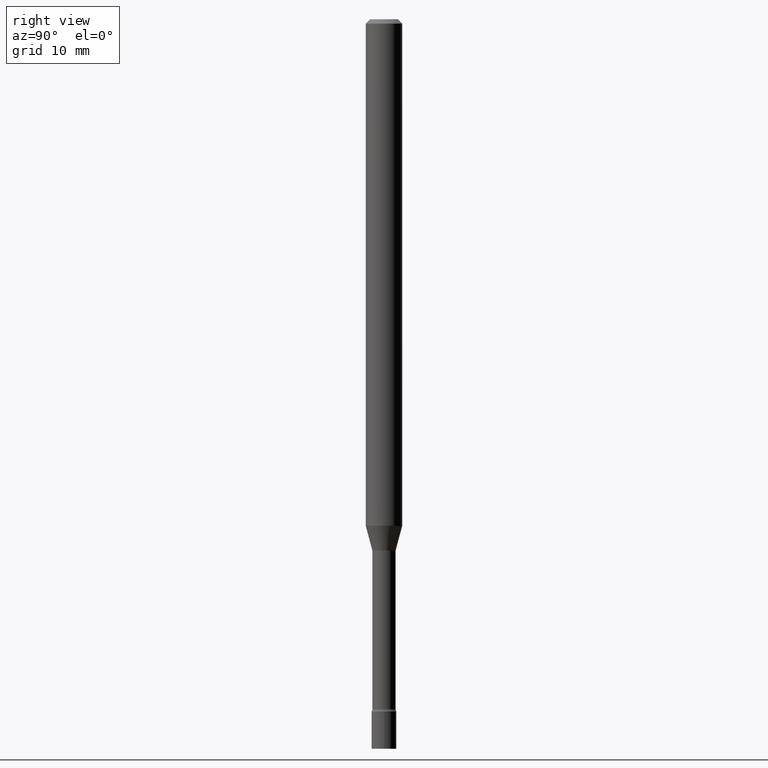
[diagram: clean part render]
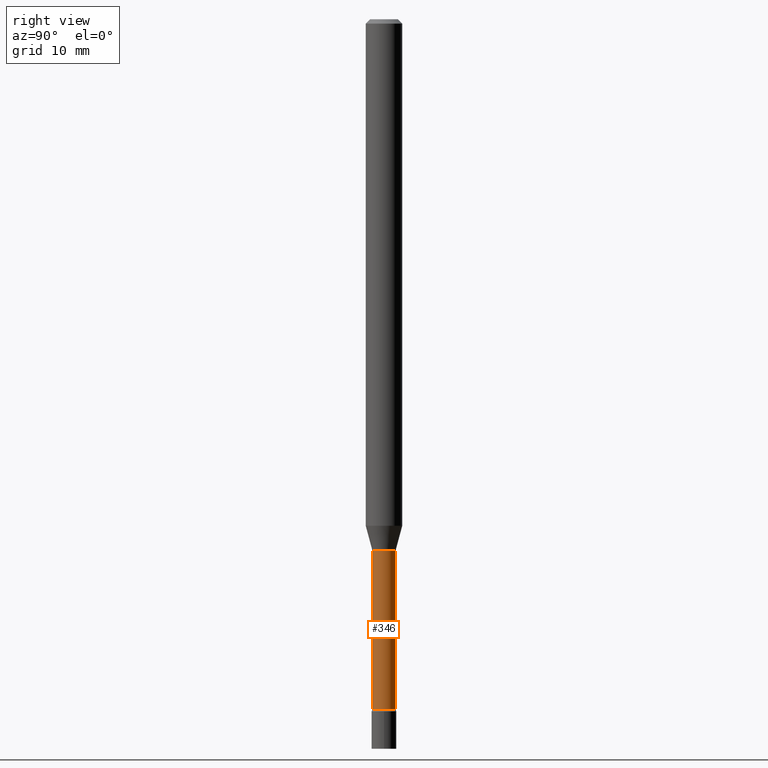
[diagram: same view with one face highlighted and labeled with its STEP entity id]
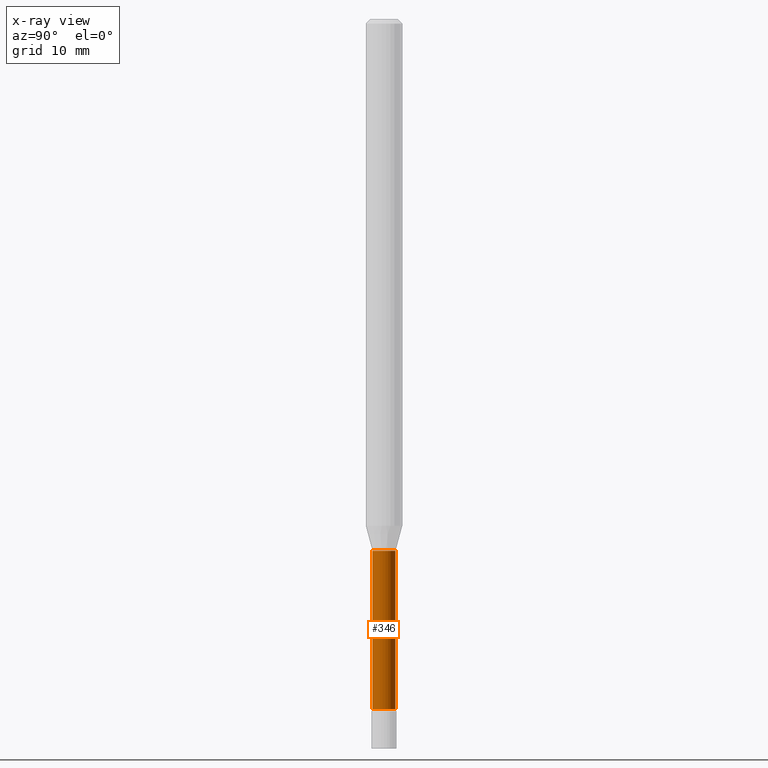
[diagram: x-ray of the same camera — body ghosted, the highlighted face saturated]
A machine part, right view. The second image highlights one B-rep face of the part: STEP entity #346.
The next image is the same camera in x-ray: the body ghosted, the highlighted face saturated — about 0% of this face is hidden behind the body in this view.
In plain terms, the highlighted cylindrical surface (edge-blend (fillet) strip) has radius 1.0147 mm, axis along (-0, 0, 1).
Its self-contained STEP definition (entity closure, byte-faithful):
#11 = DIRECTION ( 'NONE',  ( -2.445529126728560125E-29, 3.491394956391731301E-15, 1.000000000000000000 ) ) ;
#20 = AXIS2_PLACEMENT_3D ( 'NONE', #66, #383, #258 ) ;
#39 = EDGE_CURVE ( 'NONE', #275, #224, #396, .T. ) ;
#66 = CARTESIAN_POINT ( 'NONE',  ( 5.780334689333618772E-29, -8.252378252224179636E-15, -2.363633549139569467 ) ) ;
#69 = DIRECTION ( 'NONE',  ( -2.445529126728560125E-29, 3.491394956391731301E-15, 1.000000000000000000 ) ) ;
#70 = ORIENTED_EDGE ( 'NONE', *, *, #172, .F. ) ;
#113 = VECTOR ( 'NONE', #11, 39.37007874015748143 ) ;
#130 = VERTEX_POINT ( 'NONE', #253 ) ;
#164 = AXIS2_PLACEMENT_3D ( 'NONE', #239, #283, #360 ) ;
#172 = EDGE_CURVE ( 'NONE', #224, #430, #452, .T. ) ;
#182 = ORIENTED_EDGE ( 'NONE', *, *, #432, .T. ) ;
#184 = CYLINDRICAL_SURFACE ( 'NONE', #436, 0.03995000000000004103 ) ;
#218 = CARTESIAN_POINT ( 'NONE',  ( -2.789693589735089879E-16, -0.03995000000000831913, -2.363633549139569023 ) ) ;
#224 = VERTEX_POINT ( 'NONE', #329 ) ;
#226 = CARTESIAN_POINT ( 'NONE',  ( 2.838618229362180999E-16, 0.03994999999999365725, -1.821974787463811474 ) ) ;
#238 = CARTESIAN_POINT ( 'NONE',  ( -2.789693589735665748E-16, -0.03995000000000004103, 1.394812285078498032E-16 ) ) ;
#239 = CARTESIAN_POINT ( 'NONE',  ( 4.455692410907827704E-29, -6.361233583624047089E-15, -1.821974787463811252 ) ) ;
#241 = EDGE_CURVE ( 'NONE', #130, #430, #251, .T. ) ;
#251 = LINE ( 'NONE', #488, #419 ) ;
#253 = CARTESIAN_POINT ( 'NONE',  ( 2.929212428171594149E-16, 0.03994999999999181151, -2.363633549139569912 ) ) ;
#258 = DIRECTION ( 'NONE',  ( -6.982962677686265133E-15, -1.000000000000000000, 6.838167693777868349E-15 ) ) ;
#275 = VERTEX_POINT ( 'NONE', #218 ) ;
#283 = DIRECTION ( 'NONE',  ( -2.445529126728560125E-29, 3.491394956391731301E-15, 1.000000000000000000 ) ) ;
#294 = DIRECTION ( 'NONE',  ( -6.982962677686265133E-15, -1.000000000000000000, 3.491394956391731301E-15 ) ) ;
#329 = CARTESIAN_POINT ( 'NONE',  ( -2.789693589735218069E-16, -0.03995000000000637624, -1.821974787463811030 ) ) ;
#346 = ADVANCED_FACE ( 'NONE', ( #499 ), #184, .T. ) ;
#360 = DIRECTION ( 'NONE',  ( -6.982962677686265922E-15, -1.000000000000000000, 6.838167693777877816E-15 ) ) ;
#369 = CIRCLE ( 'NONE', #20, 0.03995000000000006879 ) ;
#383 = DIRECTION ( 'NONE',  ( -2.445529126728560125E-29, 3.491394956391731301E-15, 1.000000000000000000 ) ) ;
#388 = ORIENTED_EDGE ( 'NONE', *, *, #241, .T. ) ;
#396 = LINE ( 'NONE', #238, #113 ) ;
#419 = VECTOR ( 'NONE', #494, 39.37007874015748143 ) ;
#430 = VERTEX_POINT ( 'NONE', #226 ) ;
#432 = EDGE_CURVE ( 'NONE', #275, #130, #369, .T. ) ;
#436 = AXIS2_PLACEMENT_3D ( 'NONE', #497, #69, #294 ) ;
#452 = CIRCLE ( 'NONE', #164, 0.03995000000000001328 ) ;
#488 = CARTESIAN_POINT ( 'NONE',  ( 2.838618229361602665E-16, 0.03995000000000004103, -1.394812285078498032E-16 ) ) ;
#494 = DIRECTION ( 'NONE',  ( -2.445529126728560125E-29, 3.491394956391731301E-15, 1.000000000000000000 ) ) ;
#497 = CARTESIAN_POINT ( 'NONE',  ( 0.000000000000000000, 0.000000000000000000, 0.000000000000000000 ) ) ;
#499 = FACE_OUTER_BOUND ( 'NONE', #503, .T. ) ;
#503 = EDGE_LOOP ( 'NONE', ( #182, #388, #70, #510 ) ) ;
#510 = ORIENTED_EDGE ( 'NONE', *, *, #39, .F. ) ;